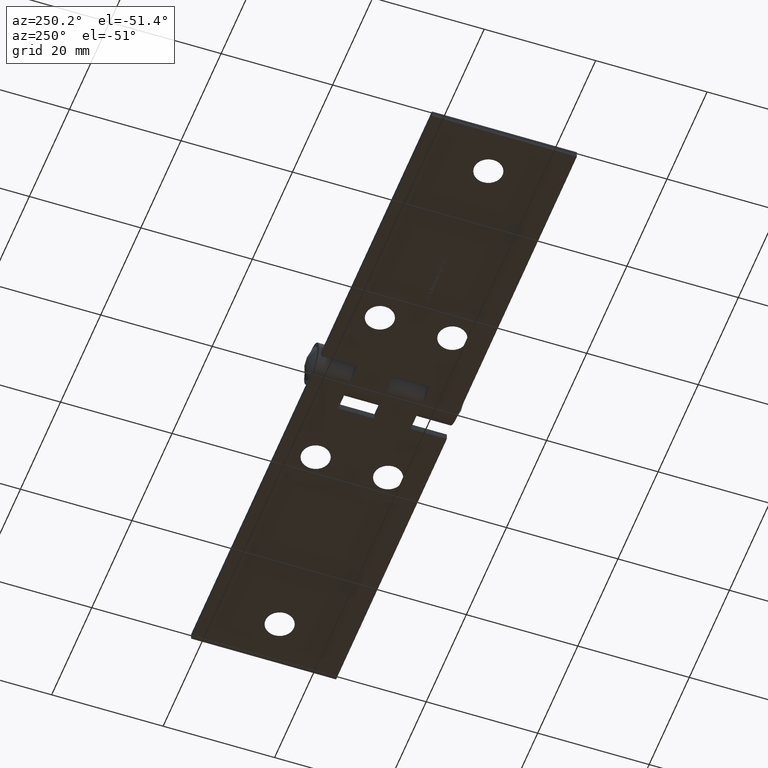
[diagram: clean part render]
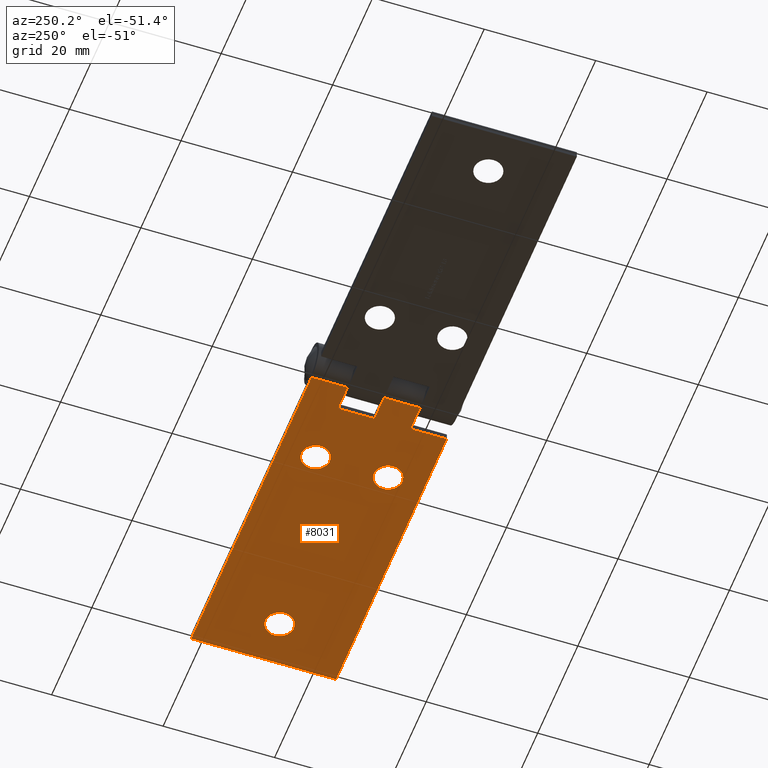
[diagram: same view with one face highlighted and labeled with its STEP entity id]
A machine part, auxiliary view. The second image highlights one B-rep face of the part: STEP entity #8031.
In plain terms, the highlighted planar face has unit normal (0, 0, 1).
Its self-contained STEP definition (entity closure, byte-faithful):
#57 = DIRECTION ( 'NONE',  ( 1.000000000000000000, 0.000000000000000000, -0.000000000000000000 ) ) ;
#105 = CARTESIAN_POINT ( 'NONE',  ( 60.00000000000000000, -13.00000000000000000, 2.508278806333708124E-18 ) ) ;
#126 = CARTESIAN_POINT ( 'NONE',  ( 60.00000000000000000, 6.500000000000000000, 0.000000000000000000 ) ) ;
#563 = VERTEX_POINT ( 'NONE', #8648 ) ;
#641 = ORIENTED_EDGE ( 'NONE', *, *, #9569, .F. ) ;
#861 = CARTESIAN_POINT ( 'NONE',  ( 60.00000000000000000, -1.249000902703299136E-15, 0.000000000000000000 ) ) ;
#879 = PLANE ( 'NONE',  #2433 ) ;
#941 = DIRECTION ( 'NONE',  ( -1.000000000000000000, -0.000000000000000000, -5.225580846528567259E-19 ) ) ;
#983 = EDGE_CURVE ( 'NONE', #10564, #3896, #2443, .T. ) ;
#1061 = VECTOR ( 'NONE', #2871, 1000.000000000000000 ) ;
#1068 = VERTEX_POINT ( 'NONE', #2650 ) ;
#1103 = EDGE_CURVE ( 'NONE', #2914, #3187, #9356, .T. ) ;
#1218 = ORIENTED_EDGE ( 'NONE', *, *, #1500, .T. ) ;
#1274 = AXIS2_PLACEMENT_3D ( 'NONE', #6144, #6060, #8785 ) ;
#1286 = EDGE_CURVE ( 'NONE', #3896, #3187, #4655, .T. ) ;
#1388 = EDGE_CURVE ( 'NONE', #6345, #5508, #7810, .T. ) ;
#1487 = EDGE_CURVE ( 'NONE', #1068, #2914, #4388, .T. ) ;
#1500 = EDGE_CURVE ( 'NONE', #10564, #4274, #9766, .T. ) ;
#1557 = AXIS2_PLACEMENT_3D ( 'NONE', #7357, #1770, #3667 ) ;
#1770 = DIRECTION ( 'NONE',  ( 0.000000000000000000, 0.000000000000000000, 1.000000000000000000 ) ) ;
#1957 = CARTESIAN_POINT ( 'NONE',  ( 60.00000000000000000, 13.00000000000000000, 2.508278806333708124E-18 ) ) ;
#2433 = AXIS2_PLACEMENT_3D ( 'NONE', #2807, #8924, #57 ) ;
#2443 = LINE ( 'NONE', #10653, #5628 ) ;
#2494 = CARTESIAN_POINT ( 'NONE',  ( 55.20000000000000284, 0.000000000000000000, 0.000000000000000000 ) ) ;
#2650 = CARTESIAN_POINT ( 'NONE',  ( 55.20000000000000284, 6.500000000000000000, 0.000000000000000000 ) ) ;
#2807 = CARTESIAN_POINT ( 'NONE',  ( 0.000000000000000000, 13.00000000000000000, 0.000000000000000000 ) ) ;
#2867 = DIRECTION ( 'NONE',  ( -1.000000000000000000, -0.000000000000000000, -0.000000000000000000 ) ) ;
#2871 = DIRECTION ( 'NONE',  ( -0.000000000000000000, -1.000000000000000000, -0.000000000000000000 ) ) ;
#2914 = VERTEX_POINT ( 'NONE', #126 ) ;
#3121 = LINE ( 'NONE', #2494, #7795 ) ;
#3132 = VECTOR ( 'NONE', #6299, 1000.000000000000000 ) ;
#3187 = VERTEX_POINT ( 'NONE', #861 ) ;
#3236 = ORIENTED_EDGE ( 'NONE', *, *, #3484, .T. ) ;
#3267 = ORIENTED_EDGE ( 'NONE', *, *, #983, .F. ) ;
#3293 = VERTEX_POINT ( 'NONE', #8118 ) ;
#3333 = VERTEX_POINT ( 'NONE', #8725 ) ;
#3381 = DIRECTION ( 'NONE',  ( 0.000000000000000000, -1.000000000000000000, 0.000000000000000000 ) ) ;
#3484 = EDGE_CURVE ( 'NONE', #9426, #9426, #3962, .T. ) ;
#3512 = VECTOR ( 'NONE', #10886, 1000.000000000000000 ) ;
#3649 = EDGE_LOOP ( 'NONE', ( #10665 ) ) ;
#3667 = DIRECTION ( 'NONE',  ( 1.000000000000000000, 0.000000000000000000, 0.000000000000000000 ) ) ;
#3849 = EDGE_CURVE ( 'NONE', #3293, #1068, #3121, .T. ) ;
#3896 = VERTEX_POINT ( 'NONE', #7654 ) ;
#3926 = LINE ( 'NONE', #8135, #3512 ) ;
#3962 = CIRCLE ( 'NONE', #1557, 2.549999999999996714 ) ;
#4138 = ORIENTED_EDGE ( 'NONE', *, *, #3849, .T. ) ;
#4274 = VERTEX_POINT ( 'NONE', #10929 ) ;
#4315 = ORIENTED_EDGE ( 'NONE', *, *, #5264, .T. ) ;
#4388 = LINE ( 'NONE', #7217, #3132 ) ;
#4655 = LINE ( 'NONE', #9667, #10456 ) ;
#4777 = CIRCLE ( 'NONE', #7912, 2.549999999999996714 ) ;
#5168 = CARTESIAN_POINT ( 'NONE',  ( 55.20000000000000284, -6.499999999999997335, 0.000000000000000000 ) ) ;
#5264 = EDGE_CURVE ( 'NONE', #4274, #6345, #10143, .T. ) ;
#5451 = VECTOR ( 'NONE', #9222, 1000.000000000000000 ) ;
#5508 = VERTEX_POINT ( 'NONE', #7896 ) ;
#5538 = VECTOR ( 'NONE', #941, 1000.000000000000000 ) ;
#5628 = VECTOR ( 'NONE', #6149, 1000.000000000000000 ) ;
#5716 = EDGE_LOOP ( 'NONE', ( #3236 ) ) ;
#6060 = DIRECTION ( 'NONE',  ( 0.000000000000000000, 0.000000000000000000, 1.000000000000000000 ) ) ;
#6144 = CARTESIAN_POINT ( 'NONE',  ( 8.000000000000000000, 0.000000000000000000, -8.673617379884035472E-16 ) ) ;
#6149 = DIRECTION ( 'NONE',  ( 0.000000000000000000, 1.000000000000000000, 0.000000000000000000 ) ) ;
#6183 = DIRECTION ( 'NONE',  ( 1.000000000000000000, -2.602085213965210149E-16, 0.000000000000000000 ) ) ;
#6299 = DIRECTION ( 'NONE',  ( 1.000000000000000000, 0.000000000000000000, 0.000000000000000000 ) ) ;
#6345 = VERTEX_POINT ( 'NONE', #105 ) ;
#6438 = EDGE_CURVE ( 'NONE', #3333, #3333, #4777, .T. ) ;
#6602 = CARTESIAN_POINT ( 'NONE',  ( 0.000000000000000000, -6.500000000000000888, 0.000000000000000000 ) ) ;
#6621 = ORIENTED_EDGE ( 'NONE', *, *, #10858, .T. ) ;
#7217 = CARTESIAN_POINT ( 'NONE',  ( 0.000000000000000000, 6.500000000000000000, 0.000000000000000000 ) ) ;
#7328 = ORIENTED_EDGE ( 'NONE', *, *, #1487, .T. ) ;
#7357 = CARTESIAN_POINT ( 'NONE',  ( 44.00000000000000000, -6.500000000000000000, -8.673617379884035472E-16 ) ) ;
#7361 = FACE_OUTER_BOUND ( 'NONE', #9147, .T. ) ;
#7394 = VECTOR ( 'NONE', #10157, 1000.000000000000000 ) ;
#7492 = FACE_BOUND ( 'NONE', #7848, .T. ) ;
#7654 = CARTESIAN_POINT ( 'NONE',  ( 55.20000000000000284, 0.000000000000000000, 0.000000000000000000 ) ) ;
#7667 = DIRECTION ( 'NONE',  ( 0.000000000000000000, 0.000000000000000000, 1.000000000000000000 ) ) ;
#7759 = FACE_BOUND ( 'NONE', #5716, .T. ) ;
#7795 = VECTOR ( 'NONE', #3381, 1000.000000000000000 ) ;
#7810 = LINE ( 'NONE', #8117, #11431 ) ;
#7848 = EDGE_LOOP ( 'NONE', ( #6621 ) ) ;
#7896 = CARTESIAN_POINT ( 'NONE',  ( 0.000000000000000000, -13.00000000000000000, 0.000000000000000000 ) ) ;
#7912 = AXIS2_PLACEMENT_3D ( 'NONE', #9432, #7667, #9390 ) ;
#8031 = ADVANCED_FACE ( 'NONE', ( #7759, #8204, #7492, #7361 ), #879, .F. ) ;
#8117 = CARTESIAN_POINT ( 'NONE',  ( 0.000000000000000000, -13.00000000000000000, 0.000000000000000000 ) ) ;
#8118 = CARTESIAN_POINT ( 'NONE',  ( 55.20000000000000284, 13.00000000000000000, 0.000000000000000000 ) ) ;
#8135 = CARTESIAN_POINT ( 'NONE',  ( 0.000000000000000000, 13.00000000000000000, 0.000000000000000000 ) ) ;
#8204 = FACE_BOUND ( 'NONE', #3649, .T. ) ;
#8215 = EDGE_CURVE ( 'NONE', #11209, #5508, #3926, .T. ) ;
#8648 = CARTESIAN_POINT ( 'NONE',  ( 10.55000000000000071, 0.000000000000000000, -8.673617379884035472E-16 ) ) ;
#8725 = CARTESIAN_POINT ( 'NONE',  ( 46.54999999999999716, 6.500000000000000000, -8.673617379884035472E-16 ) ) ;
#8766 = CARTESIAN_POINT ( 'NONE',  ( 46.54999999999999716, -6.500000000000000000, -8.673617379884035472E-16 ) ) ;
#8785 = DIRECTION ( 'NONE',  ( 1.000000000000000000, 0.000000000000000000, 0.000000000000000000 ) ) ;
#8864 = CARTESIAN_POINT ( 'NONE',  ( 55.20000000000000284, 13.00000000000000000, 0.000000000000000000 ) ) ;
#8924 = DIRECTION ( 'NONE',  ( 0.000000000000000000, 0.000000000000000000, 1.000000000000000000 ) ) ;
#8990 = ORIENTED_EDGE ( 'NONE', *, *, #1286, .F. ) ;
#9147 = EDGE_LOOP ( 'NONE', ( #4138, #7328, #10025, #8990, #3267, #1218, #4315, #11058, #10459, #641 ) ) ;
#9222 = DIRECTION ( 'NONE',  ( -0.000000000000000000, -1.000000000000000000, -0.000000000000000000 ) ) ;
#9356 = LINE ( 'NONE', #1957, #1061 ) ;
#9390 = DIRECTION ( 'NONE',  ( 1.000000000000000000, 0.000000000000000000, 0.000000000000000000 ) ) ;
#9426 = VERTEX_POINT ( 'NONE', #8766 ) ;
#9432 = CARTESIAN_POINT ( 'NONE',  ( 44.00000000000000000, 6.500000000000000000, -8.673617379884035472E-16 ) ) ;
#9569 = EDGE_CURVE ( 'NONE', #3293, #11209, #11480, .T. ) ;
#9667 = CARTESIAN_POINT ( 'NONE',  ( 3.737507798326478877E-30, 1.436351038108796274E-14, 0.000000000000000000 ) ) ;
#9766 = LINE ( 'NONE', #6602, #7394 ) ;
#9799 = CARTESIAN_POINT ( 'NONE',  ( 60.00000000000000000, 13.00000000000000000, 2.508278806333708124E-18 ) ) ;
#10025 = ORIENTED_EDGE ( 'NONE', *, *, #1103, .T. ) ;
#10143 = LINE ( 'NONE', #9799, #5451 ) ;
#10157 = DIRECTION ( 'NONE',  ( 1.000000000000000000, 0.000000000000000000, -0.000000000000000000 ) ) ;
#10456 = VECTOR ( 'NONE', #6183, 1000.000000000000000 ) ;
#10459 = ORIENTED_EDGE ( 'NONE', *, *, #8215, .F. ) ;
#10564 = VERTEX_POINT ( 'NONE', #5168 ) ;
#10653 = CARTESIAN_POINT ( 'NONE',  ( 55.20000000000000284, 0.000000000000000000, -0.000000000000000000 ) ) ;
#10665 = ORIENTED_EDGE ( 'NONE', *, *, #6438, .T. ) ;
#10858 = EDGE_CURVE ( 'NONE', #563, #563, #11187, .T. ) ;
#10886 = DIRECTION ( 'NONE',  ( -0.000000000000000000, -1.000000000000000000, -0.000000000000000000 ) ) ;
#10929 = CARTESIAN_POINT ( 'NONE',  ( 60.00000000000000000, -6.500000000000000000, -0.000000000000000000 ) ) ;
#11058 = ORIENTED_EDGE ( 'NONE', *, *, #1388, .T. ) ;
#11187 = CIRCLE ( 'NONE', #1274, 2.550000000000000266 ) ;
#11209 = VERTEX_POINT ( 'NONE', #11321 ) ;
#11321 = CARTESIAN_POINT ( 'NONE',  ( 0.000000000000000000, 13.00000000000000000, 0.000000000000000000 ) ) ;
#11431 = VECTOR ( 'NONE', #2867, 1000.000000000000000 ) ;
#11480 = LINE ( 'NONE', #8864, #5538 ) ;